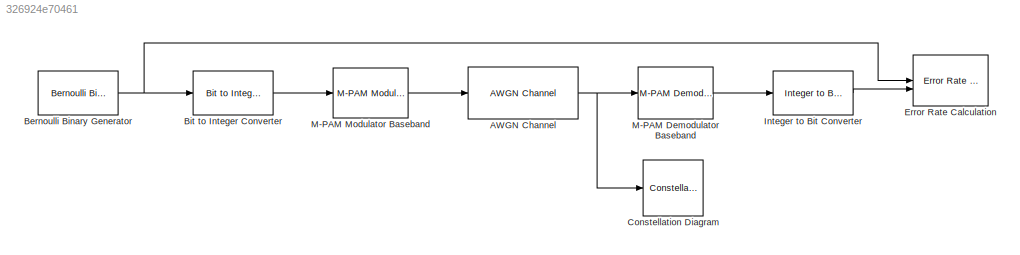
MODEL slx_326924e70461
KIND model
CONFIG AbsTol = auto
CONFIG EnableMultiTasking = off
CONFIG FixedStep = auto
CONFIG MaxStep = auto
CONFIG MinStep = auto
CONFIG RelTol = 1e-3
CONFIG SampleTimeConstraint = Unconstrained
CONFIG SolverName = VariableStepAuto
CONFIG StartTime = 0.0
CONFIG StopTime = 10.0
BLOCK [Reference] AWGN Channel  REF=commchan3/AWGN
Channel
  SourceBlock = commchan3/AWGN\nChannel
  SourceType = AWGN Channel
BLOCK [Reference] Bernoulli Binary Generator  REF=commrandsrc3/Bernoulli Binary
Generator
  SourceBlock = commrandsrc3/Bernoulli Binary\nGenerator
  SourceType = Bernoulli Binary Generator
BLOCK [Reference] Bit to Integer Converter  REF=simulink/Logic and Bit
Operations/Bit to Integer
Converter
  SourceBlock = simulink/Logic and Bit\nOperations/Bit to Integer\nConverter
  SourceType = Bit to Integer Converter
BLOCK [ConstellationDiagram] Constellation Diagram
  GraphicalSettings = {"Style":{"BackgroundColor":[0.12941176470588237,0.12941176470588237,0.12941176470588237],"AxesColor":[0.07058823529411765,0.07058823529411765,0.07058823529411765],"LabelsColor":[0.8509803921568627,0.8509803921568627,0.8509803921568627],"LineStyle":["NONE","NONE"],"LineColor":[[1,1,0.06666666666666667],[1,0,0]],"LineWidth":[1,1],"Marker":[".","+"],"IsRefLine":[false,true],"FontSize":"small"},"Refe...<+204ch>
  ReferenceConstellation = QPSK
  ScopeFrameLocation = window
  ShowLegend = on
  WasSavedAsWebScope = on
  WindowPosition = [626.000000,92.000000,600.000000,600.000000,]
BLOCK [Reference] Error Rate Calculation  REF=commsink2/Error Rate
Calculation
  SourceBlock = commsink2/Error Rate\nCalculation
  SourceType = Error Rate Calculation
BLOCK [Reference] Integer to Bit Converter  REF=simulink/Logic and Bit
Operations/Integer to Bit
Converter
  SourceBlock = simulink/Logic and Bit\nOperations/Integer to Bit\nConverter
  SourceType = Integer to Bit Converter
BLOCK [Reference] M-PAM Demodulator Baseband  REF=commdigbbndam3/M-PAM
Demodulator
Baseband
  SourceBlock = commdigbbndam3/M-PAM\nDemodulator\nBaseband
  SourceType = M-PAM Demodulator Baseband
BLOCK [Reference] M-PAM Modulator Baseband  REF=commdigbbndam3/M-PAM
Modulator
Baseband
  SourceBlock = commdigbbndam3/M-PAM\nModulator\nBaseband
  SourceType = M-PAM Modulator Baseband
NET AWGN Channel:1 -> Constellation Diagram:1, M-PAM Demodulator Baseband:1
NET Bernoulli Binary Generator:1 -> Bit to Integer Converter:1, Error Rate Calculation:1
LINE Bit to Integer Converter:1 -> M-PAM Modulator Baseband:1
LINE Integer to Bit Converter:1 -> Error Rate Calculation:2
LINE M-PAM Demodulator Baseband:1 -> Integer to Bit Converter:1
LINE M-PAM Modulator Baseband:1 -> AWGN Channel:1
note: NET lines group one-source signal fan-out (src -> all destinations, sorted); 1:1 wires keep LINE
